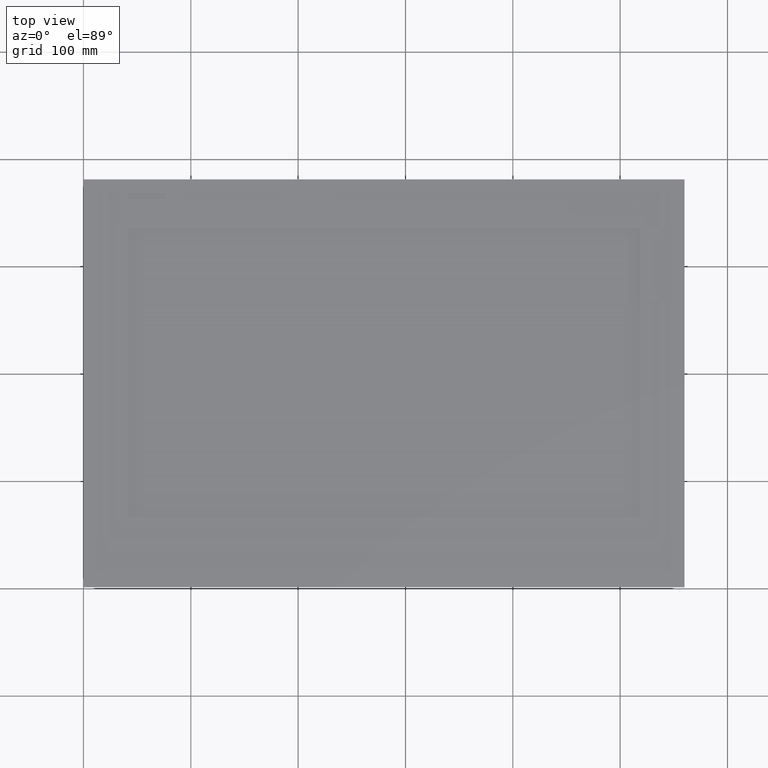
[diagram: clean part render]
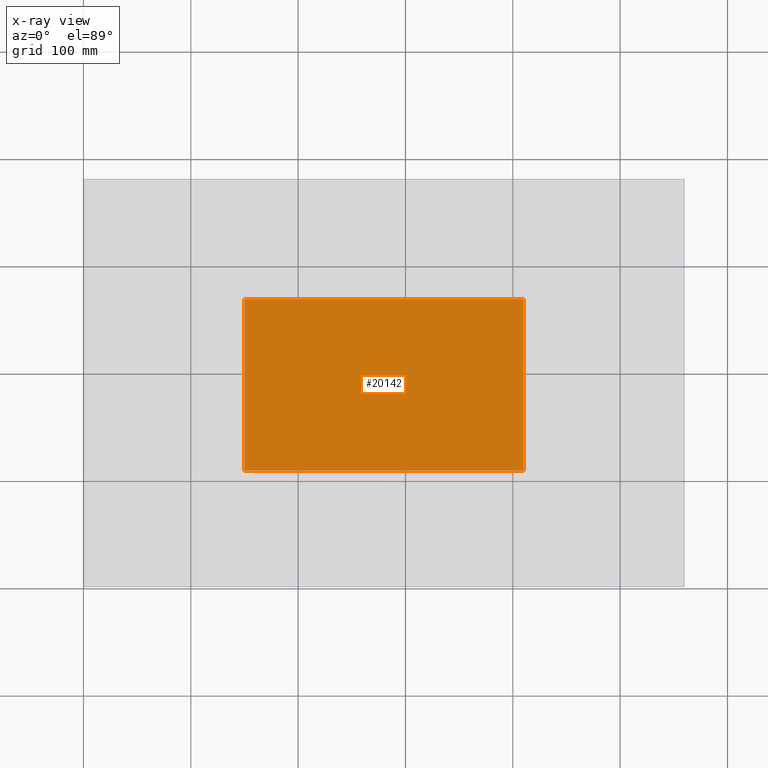
[diagram: x-ray — body ghosted, one internal face saturated and labeled with its STEP entity id]
A machine part, top view, then the same camera in x-ray: the body is ghosted and one INTERNAL B-rep face — a face not visible from any outside direction — is saturated and labeled: STEP entity #20142.
In plain terms, the highlighted planar face has unit normal (0, 0, 1).
Its self-contained STEP definition (entity closure, byte-faithful):
#5133=LINE('',#69564,#10481);
#5136=LINE('',#69570,#10484);
#5139=LINE('',#69576,#10487);
#5142=LINE('',#69581,#10490);
#10481=VECTOR('',#57463,1.);
#10484=VECTOR('',#57468,1.);
#10487=VECTOR('',#57473,1.);
#10490=VECTOR('',#57478,1.);
#15289=FACE_OUTER_BOUND('',#23871,.T.);
#17657=PLANE('',#51938);
#20142=ADVANCED_FACE('',(#15289),#17657,.F.);
#23871=EDGE_LOOP('',(#29822,#29823,#29824,#29825));
#29822=ORIENTED_EDGE('',*,*,#45624,.F.);
#29823=ORIENTED_EDGE('',*,*,#45633,.F.);
#29824=ORIENTED_EDGE('',*,*,#45630,.F.);
#29825=ORIENTED_EDGE('',*,*,#45627,.F.);
#40582=VERTEX_POINT('',#69563);
#40583=VERTEX_POINT('',#69565);
#40585=VERTEX_POINT('',#69571);
#40587=VERTEX_POINT('',#69577);
#45624=EDGE_CURVE('',#40582,#40583,#5133,.T.);
#45627=EDGE_CURVE('',#40583,#40585,#5136,.T.);
#45630=EDGE_CURVE('',#40585,#40587,#5139,.T.);
#45633=EDGE_CURVE('',#40587,#40582,#5142,.T.);
#51938=AXIS2_PLACEMENT_3D('',#69583,#57481,#57482);
#57463=DIRECTION('',(0.,-1.,0.));
#57468=DIRECTION('',(1.,0.,0.));
#57473=DIRECTION('',(0.,1.,0.));
#57478=DIRECTION('',(-1.,0.,0.));
#57481=DIRECTION('',(0.,0.,1.));
#57482=DIRECTION('',(1.,0.,0.));
#69563=CARTESIAN_POINT('',(-130.,45.4,-37.5));
#69564=CARTESIAN_POINT('',(-130.,45.4,-37.5));
#69565=CARTESIAN_POINT('',(-130.,-114.6,-37.5));
#69570=CARTESIAN_POINT('',(-130.,-114.6,-37.5));
#69571=CARTESIAN_POINT('',(130.,-114.6,-37.5));
#69576=CARTESIAN_POINT('',(130.,-114.6,-37.5));
#69577=CARTESIAN_POINT('',(130.,45.4,-37.5));
#69581=CARTESIAN_POINT('',(130.,45.4,-37.5));
#69583=CARTESIAN_POINT('',(-130.,-114.6,-37.5));